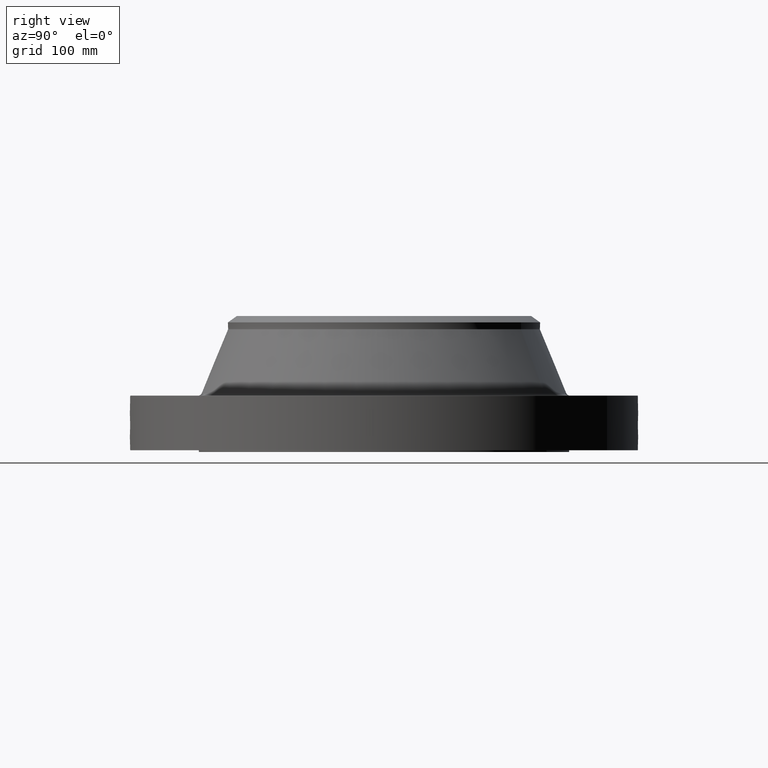
[diagram: clean part render]
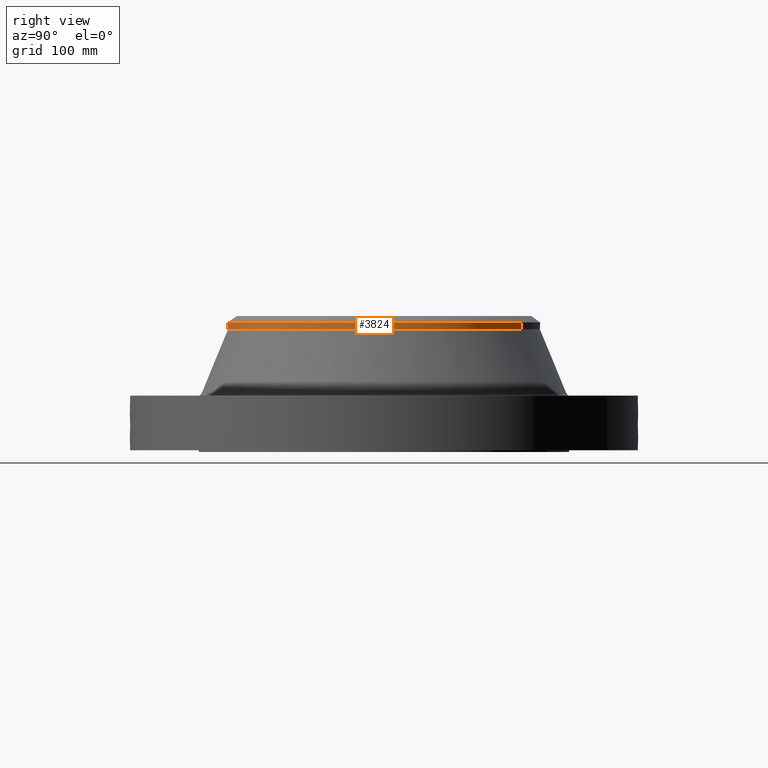
[diagram: same view with one face highlighted and labeled with its STEP entity id]
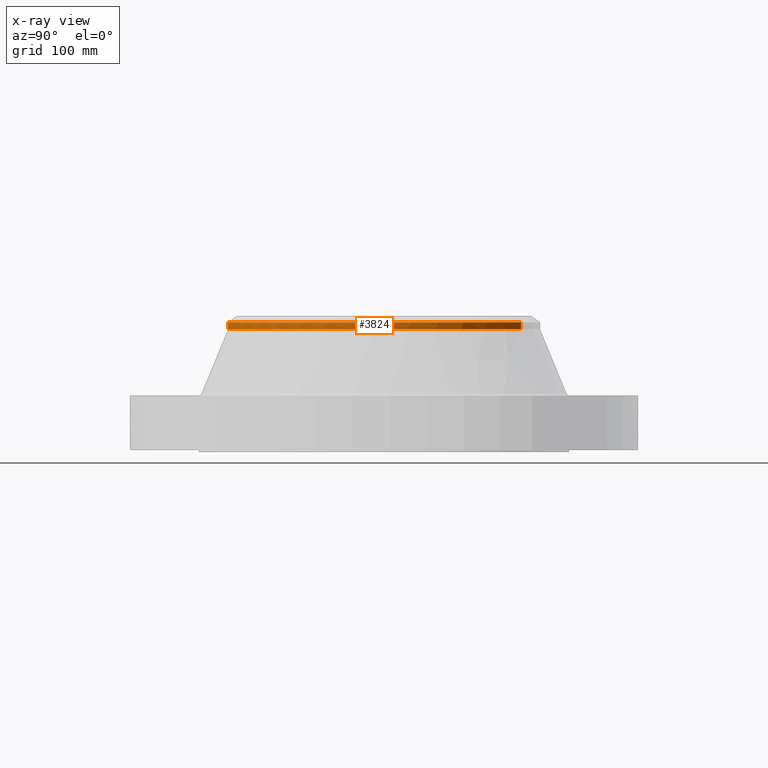
[diagram: x-ray of the same camera — body ghosted, the highlighted face saturated]
A machine part, right view. The second image highlights one B-rep face of the part: STEP entity #3824.
The next image is the same camera in x-ray: the body ghosted, the highlighted face saturated — about 0% of this face is hidden behind the body in this view.
In plain terms, the highlighted cylindrical surface (partial cylindrical patch) has radius 136.525 mm, axis along (0, 0, -1).
Its self-contained STEP definition (entity closure, byte-faithful):
#3013=AXIS2_PLACEMENT_3D('Circle Axis2P3D',#3011,#3012,$) ;
#3789=AXIS2_PLACEMENT_3D('Cylinder Axis2P3D',#3786,#3787,#3788) ;
#3807=AXIS2_PLACEMENT_3D('Circle Axis2P3D',#3805,#3806,$) ;
#3814=AXIS2_PLACEMENT_3D('Circle Axis2P3D',#3812,#3813,$) ;
#3008=CARTESIAN_POINT('Vertex',(2.57691227001,4.71700627018,4.22412462484)) ;
#3011=CARTESIAN_POINT('Axis2P3D Location',(0.,0.,4.22412462484)) ;
#3015=CARTESIAN_POINT('Vertex',(-2.57691227001,-4.71700627018,4.22412462484)) ;
#3786=CARTESIAN_POINT('Axis2P3D Location',(0.,0.,2.34000000001)) ;
#3791=CARTESIAN_POINT('Line Origine',(-2.57691227001,-4.71700627018,4.34223486106)) ;
#3795=CARTESIAN_POINT('Vertex',(-2.57691227001,-4.71700627018,4.46034509728)) ;
#3798=CARTESIAN_POINT('Line Origine',(2.57691227001,4.71700627018,4.34223486106)) ;
#3802=CARTESIAN_POINT('Vertex',(2.57691227001,4.71700627018,4.46034509728)) ;
#3805=CARTESIAN_POINT('Axis2P3D Location',(0.,0.,4.46034509728)) ;
#3809=CARTESIAN_POINT('Vertex',(2.57691227001,-4.71700627018,4.46034509728)) ;
#3812=CARTESIAN_POINT('Axis2P3D Location',(0.,0.,4.46034509728)) ;
#3012=DIRECTION('Axis2P3D Direction',(0.,0.,-0.0393700787402)) ;
#3787=DIRECTION('Axis2P3D Direction',(0.,0.,-0.0393700787402)) ;
#3788=DIRECTION('Axis2P3D XDirection',(-0.0188750212049,-0.0345504945626,0.)) ;
#3792=DIRECTION('Vector Direction',(0.,0.,-0.0393700787402)) ;
#3799=DIRECTION('Vector Direction',(0.,0.,-0.0393700787402)) ;
#3806=DIRECTION('Axis2P3D Direction',(0.,0.,-0.0393700787402)) ;
#3813=DIRECTION('Axis2P3D Direction',(0.,0.,-0.0393700787402)) ;
#3793=VECTOR('Line Direction',#3792,0.0393700787402) ;
#3800=VECTOR('Line Direction',#3799,0.0393700787402) ;
#3818=ORIENTED_EDGE('',*,*,#3797,.F.) ;
#3819=ORIENTED_EDGE('',*,*,#3017,.F.) ;
#3820=ORIENTED_EDGE('',*,*,#3804,.T.) ;
#3821=ORIENTED_EDGE('',*,*,#3811,.F.) ;
#3822=ORIENTED_EDGE('',*,*,#3816,.T.) ;
#3824=ADVANCED_FACE('PartBody',(#3823),#3790,.T.) ;
#3014=CIRCLE('generated circle',#3013,5.37500000002) ;
#3808=CIRCLE('generated circle',#3807,5.37500000002) ;
#3815=CIRCLE('generated circle',#3814,5.37500000002) ;
#3790=CYLINDRICAL_SURFACE('generated cylinder',#3789,5.37500000002) ;
#3017=EDGE_CURVE('',#3009,#3016,#3014,.T.) ;
#3797=EDGE_CURVE('',#3016,#3796,#3794,.F.) ;
#3804=EDGE_CURVE('',#3009,#3803,#3801,.F.) ;
#3811=EDGE_CURVE('',#3810,#3803,#3808,.F.) ;
#3816=EDGE_CURVE('',#3810,#3796,#3815,.T.) ;
#3817=EDGE_LOOP('',(#3818,#3819,#3820,#3821,#3822)) ;
#3823=FACE_OUTER_BOUND('',#3817,.T.) ;
#3794=LINE('Line',#3791,#3793) ;
#3801=LINE('Line',#3798,#3800) ;
#3009=VERTEX_POINT('',#3008) ;
#3016=VERTEX_POINT('',#3015) ;
#3796=VERTEX_POINT('',#3795) ;
#3803=VERTEX_POINT('',#3802) ;
#3810=VERTEX_POINT('',#3809) ;